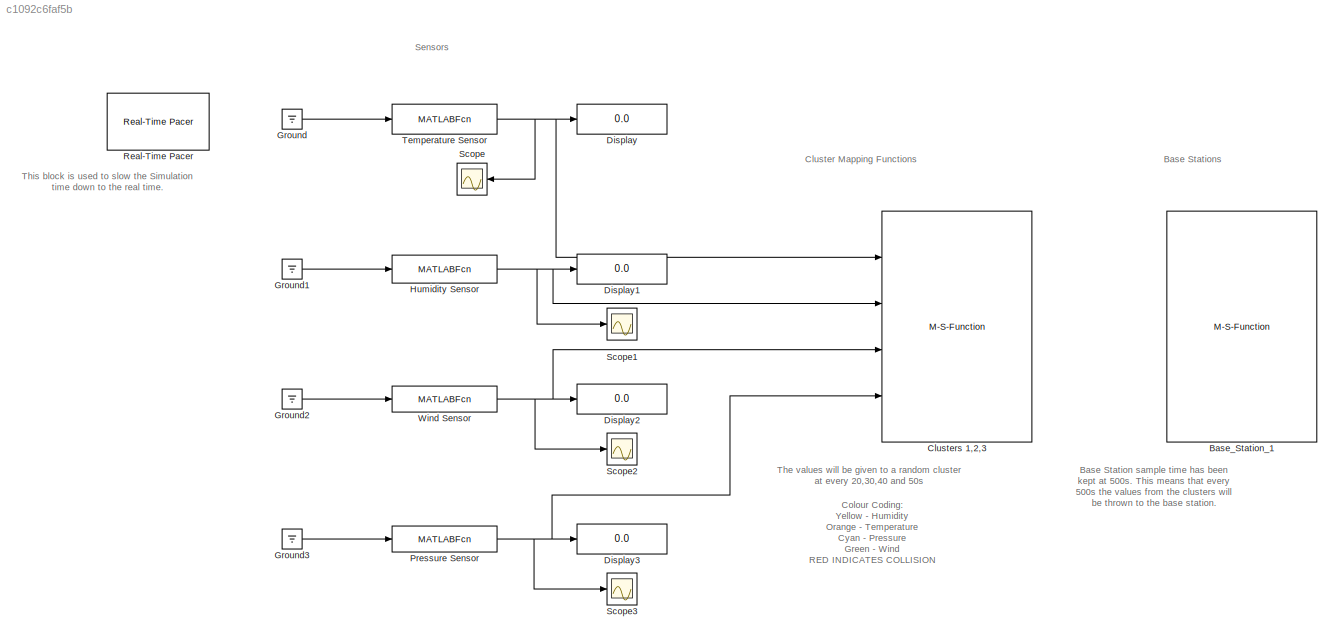
MODEL slx_c1092c6faf5b
KIND model
CONFIG InitFcn = Set_Sensor_Priorities
CONFIG StartFcn = Initialize
BLOCK [M-S-Function] Base_Station_1
  FunctionName = Base_Station
  Ports = []
BLOCK [M-S-Function] Clusters 1,2,3
  FunctionName = Cluster
  Ports = [4]
BLOCK [Display] Display
  Decimation = 1
  Ports = [1]
BLOCK [Display] Display1
  Decimation = 1
  Ports = [1]
BLOCK [Display] Display2
  Decimation = 1
  Ports = [1]
BLOCK [Display] Display3
  Decimation = 1
  Ports = [1]
BLOCK [Ground] Ground
BLOCK [Ground] Ground1
BLOCK [Ground] Ground2
BLOCK [Ground] Ground3
BLOCK [MATLABFcn] Humidity Sensor
  MATLABFcn = humid_rand_gen()
  Ports = [1, 1]
  SampleTime = hum_st
BLOCK [MATLABFcn] Pressure Sensor
  MATLABFcn = press_rand_gen()
  Ports = [1, 1]
  SampleTime = press_st
BLOCK [Reference] Real-Time Pacer  REF=realtime_pacer_lib/Real-Time Pacer
  Ports = []
  SourceBlock = realtime_pacer_lib/Real-Time Pacer
  SourceType = RealTime_Pacer
  simTimePerRealTime = 150
BLOCK [Scope] Scope
  Floating = off
  NumInputPorts = 1
  Ports = [1]
  ShowLegends = off
  YMax = 120
  YMin = -50
BLOCK [Scope] Scope1
  Floating = off
  NumInputPorts = 1
  Ports = [1]
  SaveName = ScopeData1
  ShowLegends = off
  YMax = 90
  YMin = 57.5
BLOCK [Scope] Scope2
  Floating = off
  NumInputPorts = 1
  Ports = [1]
  SaveName = ScopeData2
  ShowLegends = off
BLOCK [Scope] Scope3
  Floating = off
  NumInputPorts = 1
  Ports = [1]
  SaveName = ScopeData3
  ShowLegends = off
BLOCK [MATLABFcn] Temperature Sensor
  MATLABFcn = temp_rand_gen()
  Ports = [1, 1]
  SampleTime = temp_st
BLOCK [MATLABFcn] Wind Sensor
  MATLABFcn = wind_rand_gen()
  Ports = [1, 1]
  SampleTime = wind_st
ANNOTATION (root): Base Station sample time has been kept at 500s. This means that every 500s the values from the clusters will be thrown to the base station.
ANNOTATION (root): Base Stations
ANNOTATION (root): Cluster Mapping Functions
ANNOTATION (root): Colour Coding: Yellow - Humidity Orange - Temperature Cyan - Pressure Green - Wind RED INDICATES COLLISION
ANNOTATION (root): Sensors
ANNOTATION (root): The values will be given to a random cluster at every 20,30,40 and 50s
ANNOTATION (root): This block is used to slow the Simulation time down to the real time.
LINE Ground1:1 -> Humidity Sensor:1
LINE Ground2:1 -> Wind Sensor:1
LINE Ground3:1 -> Pressure Sensor:1
LINE Ground:1 -> Temperature Sensor:1
NET Humidity Sensor:1 -> Clusters 1,2,3:2, Display1:1, Scope1:1
NET Pressure Sensor:1 -> Clusters 1,2,3:4, Display3:1, Scope3:1
NET Temperature Sensor:1 -> Clusters 1,2,3:1, Display:1, Scope:1
NET Wind Sensor:1 -> Clusters 1,2,3:3, Display2:1, Scope2:1
note: NET lines group one-source signal fan-out (src -> all destinations, sorted); 1:1 wires keep LINE
